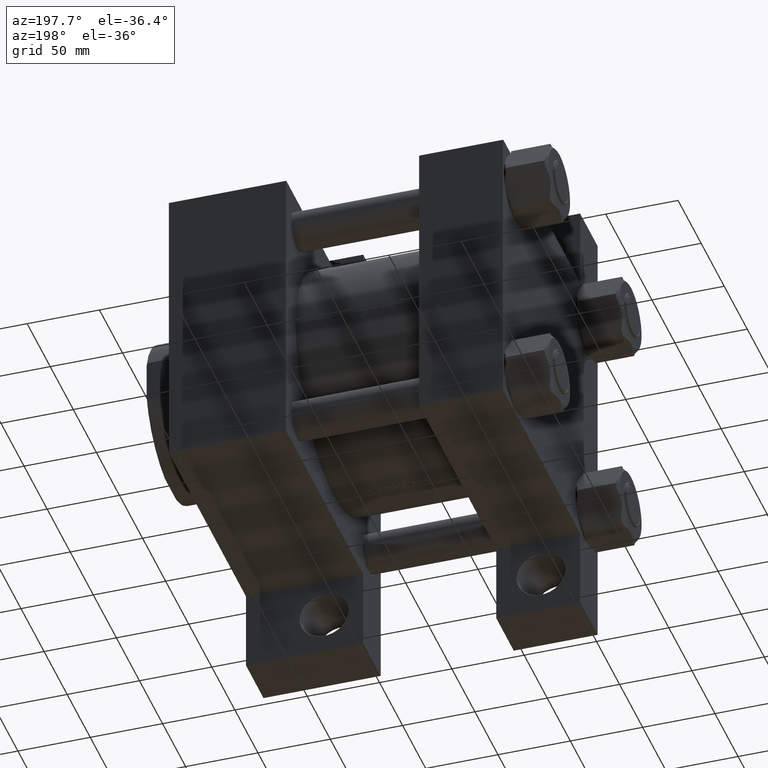
[diagram: clean part render]
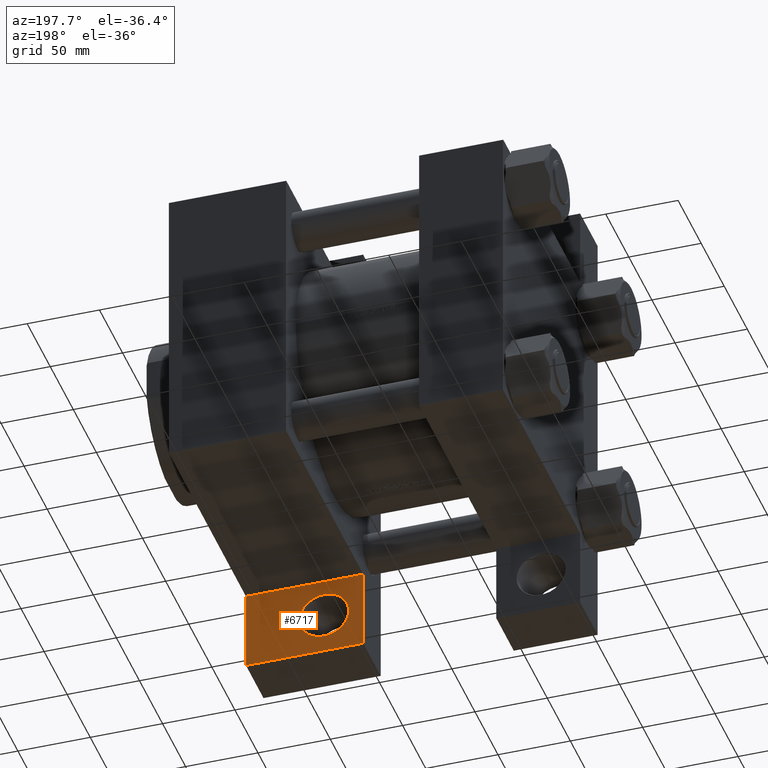
[diagram: same view with one face highlighted and labeled with its STEP entity id]
A machine part, auxiliary view. The second image highlights one B-rep face of the part: STEP entity #6717.
In plain terms, the highlighted planar face has unit normal (0, 1, 0).
Its self-contained STEP definition (entity closure, byte-faithful):
#666 = CARTESIAN_POINT ( 'NONE',  ( 193.9995000000000118, 130.0000000000000000, -64.50000000000002842 ) ) ;
#4134 = EDGE_LOOP ( 'NONE', ( #13432, #5633, #34921, #5645 ) ) ;
#4457 = DIRECTION ( 'NONE',  ( 9.824982518806688625E-16, 1.000000000000000000, -0.000000000000000000 ) ) ;
#4798 = CARTESIAN_POINT ( 'NONE',  ( 231.0000000000000568, 159.0000000000000000, -64.50000000000002842 ) ) ;
#5583 = AXIS2_PLACEMENT_3D ( 'NONE', #28065, #6159, #8862 ) ;
#5633 = ORIENTED_EDGE ( 'NONE', *, *, #37839, .F. ) ;
#5645 = ORIENTED_EDGE ( 'NONE', *, *, #31518, .F. ) ;
#6159 = DIRECTION ( 'NONE',  ( 0.000000000000000000, -0.000000000000000000, -1.000000000000000000 ) ) ;
#6360 = CIRCLE ( 'NONE', #5583, 16.99950000000005446 ) ;
#6717 = ADVANCED_FACE ( 'NONE', ( #10669, #15276 ), #14334, .T. ) ;
#6762 = VERTEX_POINT ( 'NONE', #666 ) ;
#6767 = DIRECTION ( 'NONE',  ( -1.000000000000000000, -0.000000000000000000, -0.000000000000000000 ) ) ;
#7418 = LINE ( 'NONE', #26850, #10983 ) ;
#8473 = CARTESIAN_POINT ( 'NONE',  ( 150.0000000000000000, 102.5000000000000142, -64.50000000000002842 ) ) ;
#8862 = DIRECTION ( 'NONE',  ( 1.000000000000000000, 0.000000000000000000, 0.000000000000000000 ) ) ;
#10353 = EDGE_CURVE ( 'NONE', #33441, #26196, #7418, .T. ) ;
#10669 = FACE_BOUND ( 'NONE', #23322, .T. ) ;
#10983 = VECTOR ( 'NONE', #4457, 1000.000000000000000 ) ;
#11610 = VECTOR ( 'NONE', #45661, 1000.000000000000000 ) ;
#12542 = EDGE_CURVE ( 'NONE', #6762, #31253, #6360, .T. ) ;
#12680 = AXIS2_PLACEMENT_3D ( 'NONE', #42404, #41919, #34862 ) ;
#13432 = ORIENTED_EDGE ( 'NONE', *, *, #10353, .F. ) ;
#13689 = CARTESIAN_POINT ( 'NONE',  ( 150.0000000000000568, 159.0000000000000284, -64.50000000000002842 ) ) ;
#14140 = DIRECTION ( 'NONE',  ( 1.000000000000000000, -3.426614273534433207E-16, 0.000000000000000000 ) ) ;
#14334 = PLANE ( 'NONE',  #24811 ) ;
#15276 = FACE_OUTER_BOUND ( 'NONE', #4134, .T. ) ;
#15762 = EDGE_CURVE ( 'NONE', #31253, #6762, #42232, .T. ) ;
#16053 = CARTESIAN_POINT ( 'NONE',  ( 231.0000000000000568, 102.5000000000000000, -64.50000000000002842 ) ) ;
#17954 = CARTESIAN_POINT ( 'NONE',  ( 150.0000000000000000, 102.5000000000000000, -64.50000000000002842 ) ) ;
#18331 = CARTESIAN_POINT ( 'NONE',  ( 160.0004999999999029, 130.0000000000000000, -64.50000000000002842 ) ) ;
#18815 = VERTEX_POINT ( 'NONE', #16053 ) ;
#21005 = VECTOR ( 'NONE', #14140, 1000.000000000000000 ) ;
#21106 = LINE ( 'NONE', #17954, #26634 ) ;
#23322 = EDGE_LOOP ( 'NONE', ( #35718, #38342 ) ) ;
#24574 = EDGE_CURVE ( 'NONE', #47123, #18815, #28156, .T. ) ;
#24811 = AXIS2_PLACEMENT_3D ( 'NONE', #41300, #30102, #32807 ) ;
#26196 = VERTEX_POINT ( 'NONE', #13689 ) ;
#26360 = CARTESIAN_POINT ( 'NONE',  ( 231.0000000000000568, 159.0000000000000000, -64.50000000000002842 ) ) ;
#26634 = VECTOR ( 'NONE', #6767, 1000.000000000000000 ) ;
#26850 = CARTESIAN_POINT ( 'NONE',  ( 150.0000000000000568, 159.0000000000000284, -64.50000000000002842 ) ) ;
#28065 = CARTESIAN_POINT ( 'NONE',  ( 176.9999999999999716, 130.0000000000000000, -64.50000000000002842 ) ) ;
#28156 = LINE ( 'NONE', #4798, #11610 ) ;
#28731 = LINE ( 'NONE', #44289, #21005 ) ;
#30102 = DIRECTION ( 'NONE',  ( -0.000000000000000000, 0.000000000000000000, 1.000000000000000000 ) ) ;
#31253 = VERTEX_POINT ( 'NONE', #18331 ) ;
#31518 = EDGE_CURVE ( 'NONE', #26196, #47123, #28731, .T. ) ;
#32807 = DIRECTION ( 'NONE',  ( 1.000000000000000000, 0.000000000000000000, 0.000000000000000000 ) ) ;
#33441 = VERTEX_POINT ( 'NONE', #8473 ) ;
#34862 = DIRECTION ( 'NONE',  ( 1.000000000000000000, 0.000000000000000000, 0.000000000000000000 ) ) ;
#34921 = ORIENTED_EDGE ( 'NONE', *, *, #24574, .F. ) ;
#35718 = ORIENTED_EDGE ( 'NONE', *, *, #12542, .T. ) ;
#37839 = EDGE_CURVE ( 'NONE', #18815, #33441, #21106, .T. ) ;
#38342 = ORIENTED_EDGE ( 'NONE', *, *, #15762, .T. ) ;
#41300 = CARTESIAN_POINT ( 'NONE',  ( 0.000000000000000000, 0.000000000000000000, -64.50000000000002842 ) ) ;
#41919 = DIRECTION ( 'NONE',  ( 0.000000000000000000, -0.000000000000000000, -1.000000000000000000 ) ) ;
#42232 = CIRCLE ( 'NONE', #12680, 16.99950000000005446 ) ;
#42404 = CARTESIAN_POINT ( 'NONE',  ( 176.9999999999999716, 130.0000000000000000, -64.50000000000002842 ) ) ;
#44289 = CARTESIAN_POINT ( 'NONE',  ( 150.0000000000000568, 159.0000000000000284, -64.50000000000002842 ) ) ;
#45661 = DIRECTION ( 'NONE',  ( 0.000000000000000000, -1.000000000000000000, 0.000000000000000000 ) ) ;
#47123 = VERTEX_POINT ( 'NONE', #26360 ) ;